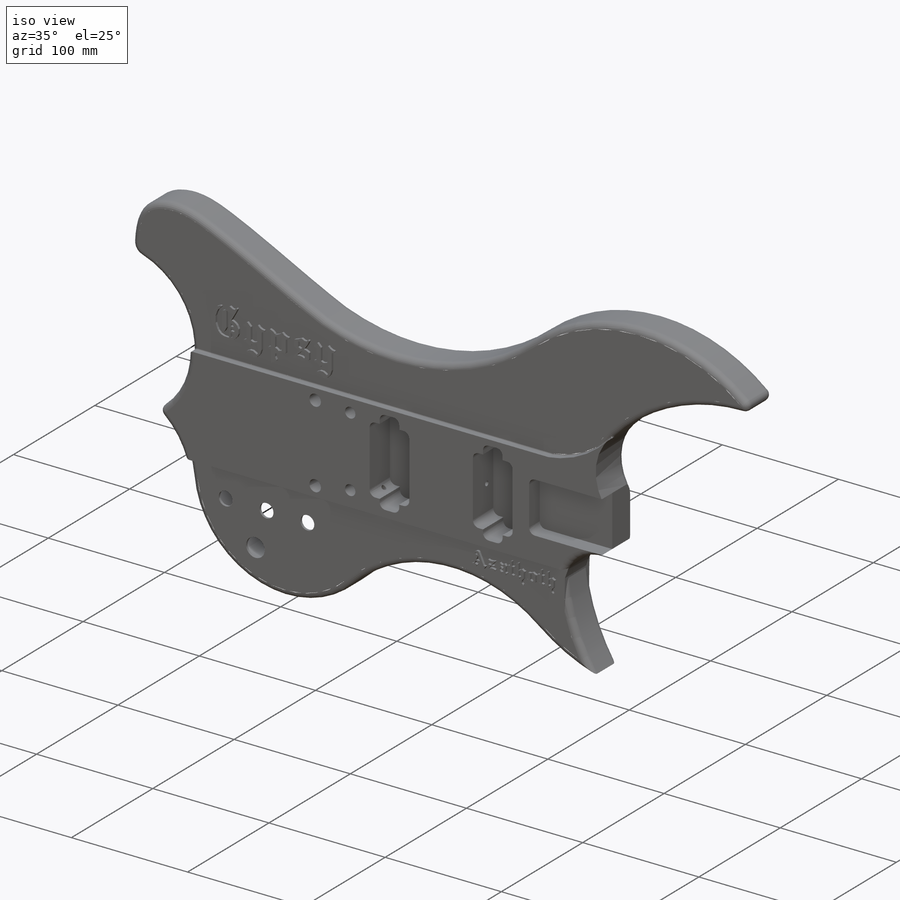
[diagram: iso view]
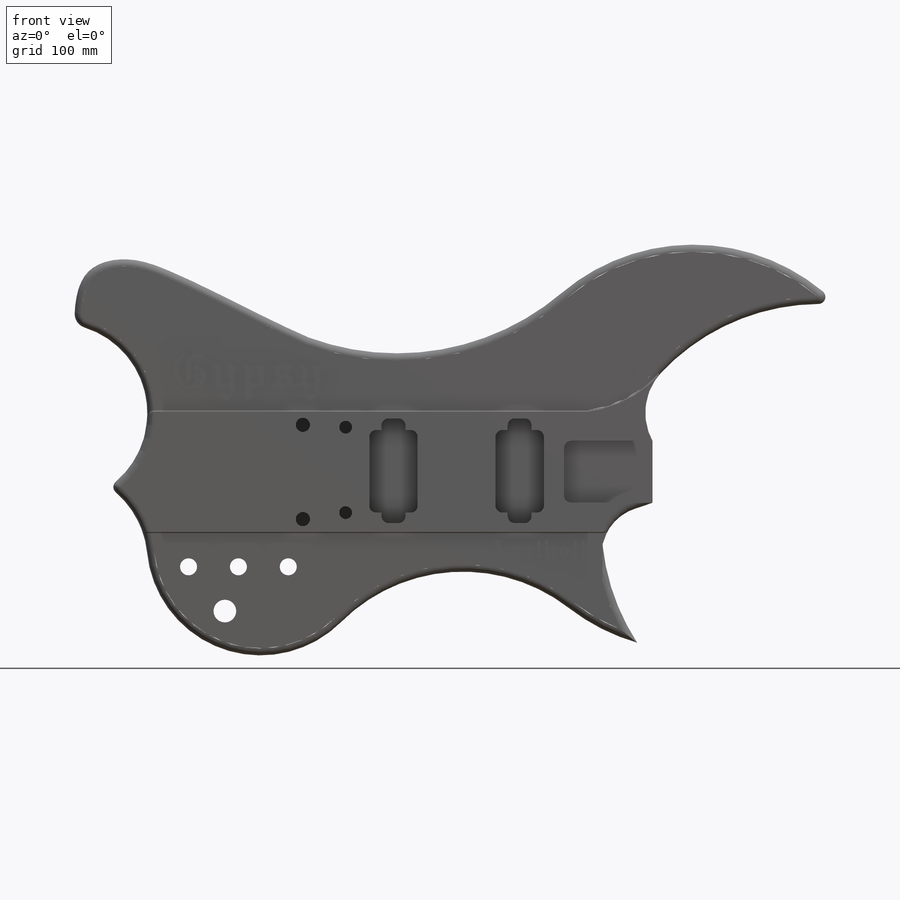
[diagram: front view]
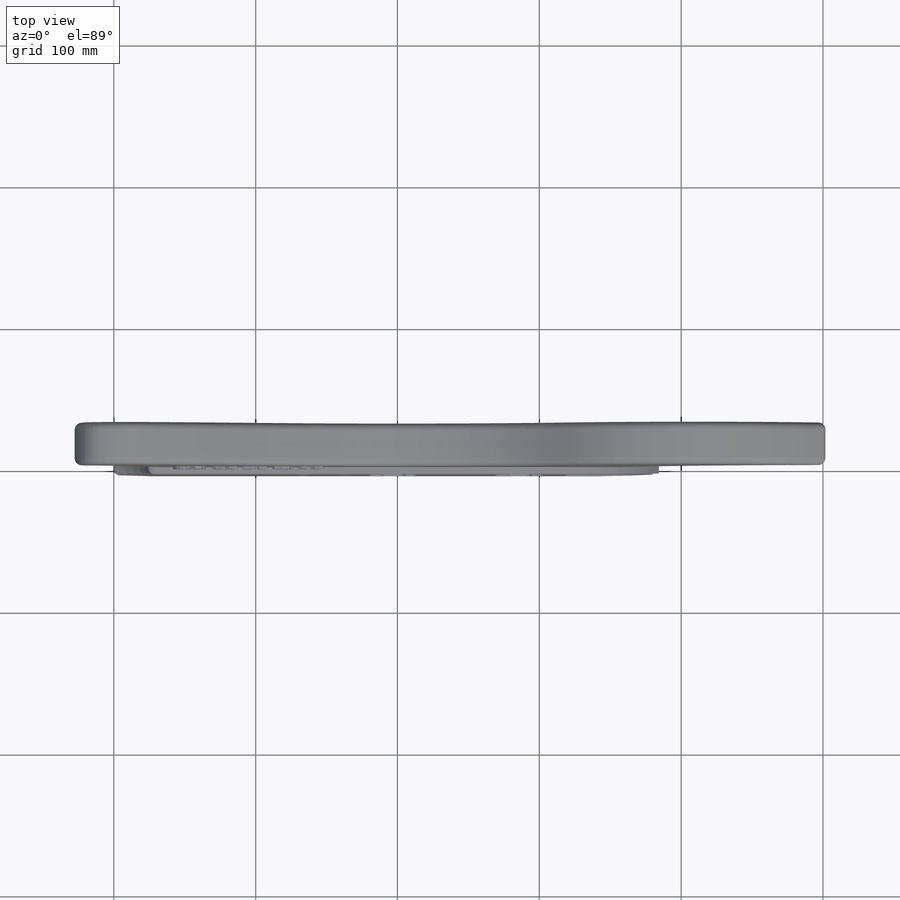
[diagram: top view]
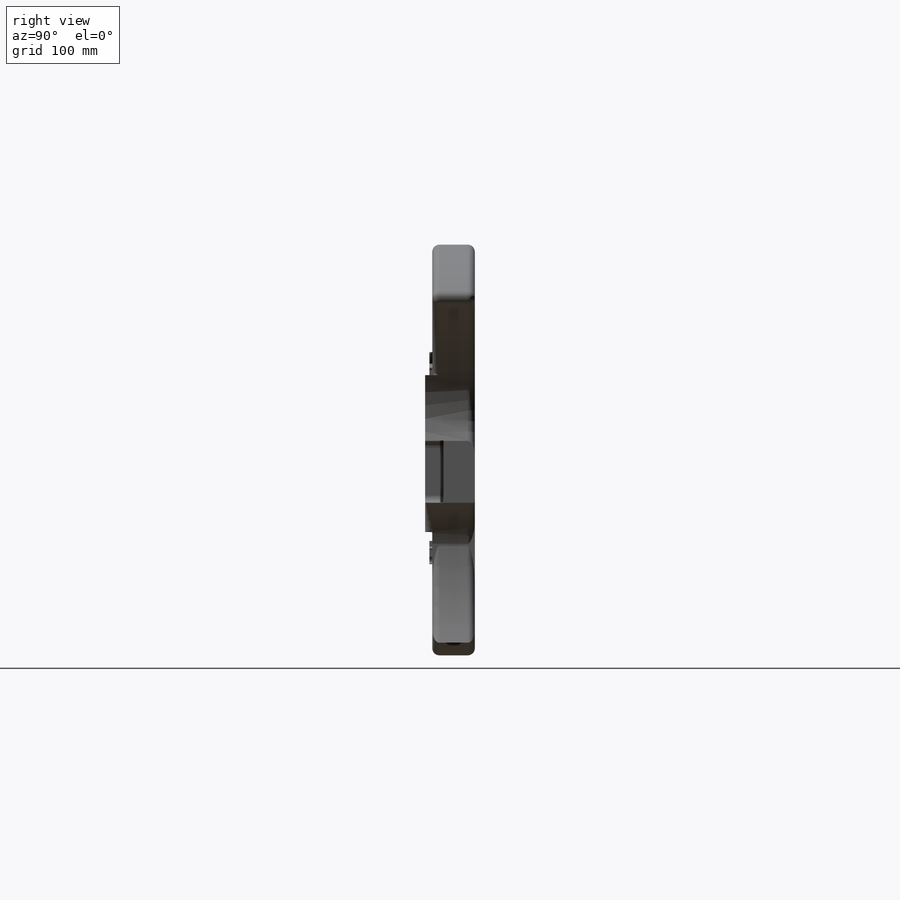
[diagram: right view]
SOLIDWORKS PART (.sldprt)
format: sldprt  version: not decoded by parser v0  size: 2,310,144 bytes
history: native  units: mm
features: sketch x12, extrude x6, cut_extrude x3, fillet x2, material x1, hole x1 (+11 scaffold rows collapsed)
feature tree (36):
  scaffold x11  (default folders/planes/origin — collapsed)
  material  "Mahogany"
  sketch  "Sketch1"  dims[c1.D2=5.0mm c1.D3=5.0mm c1.D4=5.0mm c1.D5=5.0mm c1.D6=10.0mm c1.D7=6.0mm c1.D8=8.0mm c1.D9=9.0mm c1.D10=~41.169956mm c1.D11=~154.298163mm c1.D12=~179.497138mm c1.D13=~63.372695mm c1.D14=~80.335178mm c1.D15=~121.719697mm c1.D16=~143.09034mm c1.D17=~34.205996mm c1.D18=~185.267522mm c1.D19=~12.965243mm c1.D20=~13.013087mm c1.D21=~14.247136mm c1.D22=~15.869195mm c1.D23=~9.965243mm c1.D24=~10.013087mm c1.D25=~11.247136mm c1.D26=~12.869195mm c2.D7=~12.869195mm c2.D2=6.0mm c2.D5=8.0mm c3.D7=9.0mm c3.D8=~41.169956mm c3.D9=~154.298163mm c3.D10=~179.497138mm c3.D11=~63.372695mm c3.D12=~80.335178mm c3.D13=~121.719697mm c3.D14=~143.09034mm c3.D15=~34.205996mm c3.D16=~185.267522mm c3.D17=~12.965243mm c3.D18=~13.013087mm c3.D19=~14.247136mm c3.D20=~15.869195mm c3.D21=~9.965243mm c3.D22=~10.013087mm c3.D23=~11.247136mm c3.D24=~12.869195mm c3.D2=6.0mm c3.D3=10.0mm c3.D4=9.0mm c3.D5=8.0mm c4.D7=~41.169956mm c4.D8=~154.298163mm c4.D9=~179.497138mm c4.D10=~63.372695mm c4.D11=~80.335178mm c4.D12=~121.719697mm c4.D13=~143.09034mm c4.D14=~34.205996mm c4.D15=~185.267522mm c4.D16=~12.965243mm c4.D17=~13.013087mm c4.D18=~14.247136mm c4.D19=~15.869195mm c4.D20=~9.965243mm c4.D21=~10.013087mm c4.D22=~11.247136mm c4.D23=~12.869195mm c4.D3=10.0mm c4.D4=9.0mm c4.D5=8.0mm c5.D7=~41.169956mm c5.D8=~154.298163mm c5.D9=~179.497138mm c5.D10=~63.372695mm c5.D11=~80.335178mm c5.D12=~121.719697mm c5.D13=~143.09034mm c5.D14=~34.205996mm c5.D15=~185.267522mm c5.D16=~12.965243mm c5.D17=~13.013087mm c5.D18=~14.247136mm c5.D19=~15.869195mm c6.D7=~5.578529mm c6.D8=~14.219995mm c6.D9=~43.177241mm c6.D10=~69.008297mm c6.D11=~77.649762mm c6.D12=~86.085478mm c6.D13=~94.521194mm c6.D14=~103.16266mm c6.D15=~114.052749mm c6.D16=~115.884517mm c6.D17=~117.394895mm c6.D18=~119.155518mm c6.D19=~129.077369mm c6.D20=~144.65241mm c6.D21=~144.700184mm c6.D22=~168.988413mm c6.D23=~171.125716mm c6.D24=~178.019498mm c6.D25=~179.768124mm c6.D26=~185.876226mm c6.D27=~208.473498mm c6.D28=~215.818298mm c6.D29=~298.094144mm c6.D30=~310.035215mm c6.D31=~0.262087mm c6.D32=~11.292903mm c6.D33=~19.934368mm c6.D34=~36.599019mm c6.D35=~39.584651mm c6.D36=~42.226814mm c6.D37=~44.486001mm c6.D38=~51.471289mm c6.D39=~51.800108mm c6.D40=~53.349022mm c6.D41=~54.739619mm c6.D42=~62.483185mm c6.D43=~66.744488mm c6.D44=~87.002364mm c6.D45=~88.537605mm c6.D46=~90.443064mm c6.D47=~92.270451mm c6.D48=~93.443339mm c6.D49=~93.590908mm c6.D50=~102.343869mm c6.D51=~111.035514mm c6.D52=~125.99953mm c6.D53=~129.357289mm c6.D54=~129.446766mm c6.D55=~130.085259mm c6.D56=~137.421983mm c6.D57=~139.710715mm c6.D58=~156.55887mm c6.D59=~157.724628mm c6.D60=~159.356835mm c6.D61=~159.587843mm c6.D62=~164.751714mm c6.D63=~167.006111mm c6.D64=~177.874827mm c6.D65=~192.879936mm c6.D66=~203.513431mm c6.D67=~217.141788mm c6.D68=~217.612768mm c6.D69=~220.615501mm c6.D70=~226.912804mm c6.D71=~227.601781mm c6.D72=~239.64463mm c7.D7=~26.723956mm c7.D8=~27.845325mm c7.D9=~32.568188mm c7.D10=~40.128093mm c7.D11=~42.13718mm c7.D12=~43.771352mm c7.D13=~48.35806mm c7.D14=~52.063758mm c7.D15=~52.451603mm c7.D16=~80.708241mm c7.D17=~105.428894mm c7.D18=~112.512007mm c7.D19=~122.050539mm c7.D20=~122.51918mm c7.D21=~128.642463mm c7.D22=~130.28158mm c7.D23=~136.94219mm c7.D24=~151.856031mm c7.D25=~152.667077mm c7.D26=~160.607955mm c7.D27=~162.220638mm c7.D28=~273.796817mm c7.D29=~4.184071mm c7.D30=~11.000447mm c7.D31=~14.714739mm c7.D32=~18.098924mm c7.D33=~22.708736mm c7.D34=~25.19295mm c7.D35=~25.505894mm c7.D36=~38.862248mm c7.D37=~39.969213mm c7.D38=~41.427407mm c7.D39=~42.013267mm c7.D40=~45.013267mm c7.D41=~47.707006mm c7.D42=~52.063758mm c7.D43=~54.843932mm c7.D44=~57.542252mm c7.D45=~60.54989mm c7.D46=~61.909775mm c7.D47=~62.249509mm c7.D48=~63.896645mm c7.D49=~66.226736mm c7.D50=83.9453mm c7.D51=~88.771362mm c7.D52=~89.964465mm c7.D53=~94.595612mm c7.D54=~96.778743mm c7.D55=~98.721805mm c7.D56=~99.380976mm c7.D57=~99.957174mm c7.D58=~102.008738mm c7.D59=~102.957174mm c7.D60=~109.689302mm c7.D61=~179.039916mm c8.D7=~179.039916mm c8.D2=~5.578529mm c8.D5=~14.219995mm c9.D7=~43.177241mm c9.D8=~69.008297mm c9.D9=~77.649762mm c9.D10=~86.085478mm c9.D11=~94.521194mm c9.D12=~103.16266mm c9.D13=~114.052749mm c9.D14=~115.884517mm c9.D15=~117.394895mm c9.D16=~119.155518mm c9.D17=~129.077369mm c9.D18=~144.65241mm c9.D19=~144.700184mm c9.D20=~168.988413mm c9.D21=~171.125716mm c9.D22=~178.019498mm c9.D23=~179.768124mm c9.D24=~185.876226mm c9.D25=~208.473498mm c9.D26=~215.818298mm c9.D27=~298.094144mm c9.D28=~310.035215mm c9.D29=~0.262087mm c9.D30=~11.292903mm c9.D31=~19.934368mm c9.D32=~36.599019mm c9.D33=~39.584651mm c9.D34=~42.226814mm c9.D35=~44.486001mm c9.D36=~51.471289mm c9.D37=~51.800108mm c9.D38=~53.349022mm c9.D39=~54.739619mm c9.D40=~62.483185mm c9.D41=~66.744488mm c9.D42=~87.002364mm c9.D43=~88.537605mm c9.D44=~90.443064mm c9.D45=~92.270451mm c9.D46=~93.443339mm c9.D47=~93.590908mm c9.D48=~102.343869mm c9.D49=~111.035514mm c9.D50=~125.99953mm c9.D51=~129.357289mm c9.D52=~129.446766mm c9.D53=~130.085259mm c9.D54=~137.421983mm c9.D55=~139.710715mm c9.D56=~156.55887mm c9.D57=~157.724628mm c9.D58=~159.356835mm c9.D59=~159.587843mm c9.D60=~164.751714mm c9.D61=~167.006111mm c9.D62=~177.874827mm c9.D63=~192.879936mm c9.D64=~203.513431mm c9.D65=~217.141788mm c9.D66=~217.612768mm c9.D67=~220.615501mm c9.D68=~226.912804mm c9.D69=~227.601781mm c9.D70=~239.64463mm c9.D2=~26.723956mm c9.D5=~27.845325mm c10.D7=~32.568188mm c10.D8=~40.128093mm c10.D9=~42.13718mm c10.D10=~43.771352mm c10.D11=~48.35806mm c10.D12=~52.063758mm c10.D13=~52.451603mm c10.D14=~80.708241mm c10.D15=~105.428894mm c10.D16=~112.512007mm c10.D17=~122.050539mm c10.D18=~122.51918mm c10.D19=~128.642463mm c10.D20=~130.28158mm c10.D21=~136.94219mm c10.D22=~151.856031mm c10.D23=~152.667077mm c10.D24=~160.607955mm c10.D25=~162.220638mm c10.D26=~273.796817mm c10.D27=~4.184071mm c10.D28=~11.000447mm c10.D29=~14.714739mm c10.D30=~18.098924mm c10.D31=~22.708736mm c10.D32=~25.19295mm c10.D33=~25.505894mm c10.D34=~38.862248mm c10.D35=~39.969213mm c10.D36=~41.427407mm c10.D37=~42.013267mm c10.D38=~45.013267mm c10.D39=~47.707006mm c10.D40=~52.063758mm c10.D41=~54.843932mm c10.D42=~57.542252mm c10.D43=~60.54989mm c10.D44=~61.909775mm c10.D45=~62.249509mm c10.D46=~63.896645mm c10.D47=~66.226736mm c10.D48=83.9453mm c10.D49=~88.771362mm c10.D50=~89.964465mm c10.D51=~94.595612mm c10.D52=~96.778743mm c10.D53=~98.721805mm c10.D54=~99.380976mm c10.D55=~99.957174mm c10.D56=~102.008738mm c10.D57=~102.957174mm c10.D58=~109.689302mm c10.D59=~179.039916mm c10.D2=~179.039916mm c11.D20=~5.578529mm c11.D21=~14.219995mm c11.D22=~46.111281mm c11.D23=~69.008297mm c11.D24=~77.649762mm c11.D25=~86.085478mm c11.D26=~94.521194mm c11.D27=~103.16266mm c11.D28=~114.052749mm c11.D29=~115.884517mm c11.D30=~117.394895mm c11.D31=~120.740929mm c11.D32=~129.077369mm c11.D33=~144.65241mm c11.D34=~144.700184mm c11.D35=~168.988413mm c11.D36=~171.125716mm c11.D37=~178.019498mm c11.D38=~179.768124mm c11.D39=~185.876226mm c11.D40=~208.473498mm c11.D41=~215.818298mm c11.D42=~298.094144mm c11.D43=~310.035215mm c11.D44=~0.262087mm c11.D45=~11.292903mm c11.D46=~19.934368mm c11.D47=~36.599019mm c11.D48=~39.584651mm c11.D49=~39.857167mm c11.D50=~42.226814mm c11.D51=~51.471289mm c11.D52=~51.800108mm c11.D53=~53.349022mm c11.D54=~54.739619mm c11.D55=~62.483185mm c11.D56=~66.744488mm c11.D57=~87.002364mm c11.D58=~88.537605mm c11.D59=~90.443064mm c11.D60=~92.270451mm c11.D61=~93.443339mm c11.D62=~93.590908mm c11.D63=~96.596468mm c11.D64=~111.035514mm c11.D65=~125.99953mm c11.D66=~129.357289mm c11.D67=~129.446766mm c11.D68=~130.085259mm c11.D69=~137.421983mm c11.D70=~139.710715mm c11.D71=~156.55887mm c11.D72=~157.724628mm c11.D73=~159.356835mm c11.D74=~159.587843mm c11.D75=~164.751714mm c11.D76=~167.006111mm c11.D77=~176.562856mm c11.D78=~192.879936mm c11.D79=~203.513431mm c11.D80=~217.141788mm c11.D81=~217.612768mm c11.D82=~220.615501mm c11.D83=~226.912804mm c11.D84=~227.601781mm c11.D85=~239.64463mm c12.D20=~5.578529mm c12.D21=~14.219995mm c12.D22=~46.111281mm c12.D23=~69.008297mm c12.D24=~86.085478mm c12.D25=~114.052749mm c12.D26=~115.884517mm c12.D27=~117.394895mm c12.D28=~120.740929mm c12.D29=~129.077369mm c12.D30=~144.65241mm c12.D31=~144.700184mm c12.D32=~168.988413mm c12.D33=~171.125716mm c12.D34=~178.019498mm c12.D35=~179.768124mm c12.D36=~185.876226mm c12.D37=~215.818298mm c12.D38=~36.599019mm c12.D39=~39.584651mm c12.D40=~39.857167mm c12.D41=~42.226814mm c12.D42=~51.471289mm c12.D43=~51.800108mm c12.D44=~53.349022mm c12.D45=~62.483185mm c12.D46=~66.744488mm c12.D47=~87.002364mm c12.D48=~88.537605mm c12.D49=~90.443064mm c12.D50=~93.443339mm c12.D51=~111.035514mm c12.D52=~125.99953mm c12.D53=~129.357289mm c12.D54=~129.446766mm c12.D55=~137.421983mm c12.D56=~139.710715mm c12.D57=~156.55887mm c12.D58=~157.724628mm c12.D59=~159.356835mm c12.D60=~176.562856mm c12.D61=~192.879936mm c12.D62=~203.513431mm c12.D63=~217.141788mm c12.D64=~217.612768mm c12.D65=~226.912804mm c12.D66=~227.601781mm c12.D67=~26.723956mm c12.D68=~40.128093mm c12.D69=~42.13718mm c12.D70=~43.771352mm c12.D71=~48.35806mm c12.D72=~130.28158mm c12.D73=~151.856031mm c12.D74=~152.667077mm c12.D75=~160.607955mm c12.D76=~162.220638mm c12.D77=~4.184071mm c12.D78=~11.000447mm c12.D79=~14.714739mm c12.D80=~18.098924mm c12.D81=~22.708736mm c12.D82=~25.505894mm c12.D83=~39.969213mm c12.D84=~42.013267mm c12.D85=~45.013267mm c12.D86=~47.707006mm c12.D87=~54.843932mm c12.D88=~57.542252mm c12.D89=~60.54989mm c12.D90=~61.909775mm c12.D91=~62.249509mm c12.D92=~63.896645mm c12.D93=~88.771362mm c12.D94=~89.964465mm c12.D95=~96.778743mm c12.D96=~98.721805mm c12.D97=~99.380976mm c12.D98=~99.957174mm c12.D99=~102.008738mm c12.D100=~102.957174mm c13.D67=~26.723956mm c13.D68=~40.128093mm c13.D69=~42.13718mm c13.D70=~43.771352mm c13.D71=~48.35806mm c13.D72=~130.28158mm c13.D73=~151.856031mm c13.D74=~152.667077mm c13.D75=~160.607955mm c13.D76=~162.220638mm c13.D77=~4.184071mm c13.D78=~18.098924mm c13.D79=~22.708736mm c13.D80=~25.505894mm c13.D81=~42.013267mm c13.D1=3.0mm]
  extrude  "body"  Depth=30mm
  sketch  "Sketch4"
  extrude  "holes1"  Depth=10mm
  sketch  "Sketch5"
  extrude  "neck"  Depth=22mm
  sketch  "Sketch6"
  extrude  "magnets"  Depth=10mm
  sketch  "Sketch8"  dims[c1.D1=5.0mm c1.D2=9.0mm c1.D3=~34.205996mm c1.D4=~81.201471mm c2.D1=9.0mm c2.D2=~34.205996mm c2.D3=~81.201471mm c2.D5=80.3012mm c2.D6=~88.942665mm c2.D7=~105.814097mm c2.D8=~114.455563mm c2.D9=~135.768168mm c2.D10=~145.437413mm c2.D11=~158.923036mm c2.D12=~159.107067mm c2.D13=~189.312402mm c2.D14=~195.603776mm c2.D15=~164.989619mm c2.D16=~168.355441mm c3.D5=~4.864025mm c3.D6=~30.593495mm c3.D7=~85.487747mm c3.D8=~80.012403mm c3.D9=~96.065065mm c4.D5=~96.065065mm c4.D4=80.3012mm c5.D5=~88.942665mm c5.D6=~105.814097mm c5.D7=~114.455563mm c5.D8=~135.768168mm c5.D9=~145.437413mm c5.D10=~158.923036mm c5.D11=~159.107067mm c5.D12=~189.312402mm c5.D13=~195.603776mm c5.D14=~164.989619mm c5.D15=~168.355441mm c5.D4=80.3012mm c6.D5=~135.768168mm c6.D6=~145.437413mm c6.D7=~158.923036mm c6.D8=~159.107067mm c6.D9=~189.312402mm]
  extrude  "step"  Depth=5mm
  sketch  "Sketch12"  dims[D1=~3.078137mm]
  cut_extrude  "Cut-Extrude2"  Depth=60mm
  sketch  "Sketch18"  dims[D1=5.0mm]
  extrude  "Boss-Extrude3"  Depth=28mm
  sketch  "Sketch21"  dims[D1=5.0mm]
  cut_extrude  "Cut-Extrude4"  Depth=28mm
  sketch  "Sketch22"  dims[D1=~6.031601mm]
  cut_extrude  "Cut-Extrude8"  Depth=100mm
  hole  "Ø4.0 (4) Diameter Hole2"  Diameter=4mm Depth=45mm
  sketch  "3DSketch2"
  sketch  "Sketch23"  dims[hole-wizard template sketch: 47 standard entries collapsed; hole parameters kept: c15.Hole Depth=45.0mm c15.D3=~14.816244mm c15.Drill Angle=118.0deg]
  fillet  "Fillet1"  Radius=5mm
  fillet  "Fillet4"  Radius=1mm
  sketch  "Sketch24"  dims[c1.D1=161.0mm c1.D2=70.0mm c1.D3=65.0mm c1.D4=50.0mm c2.D1=2.0mm]
decode coverage: 20 of 24 modeling features carry decoded parameters
note: ~ marks probable driven/reference dimensions
note: suppression state not decoded; provenance and decode notes live in map.json
